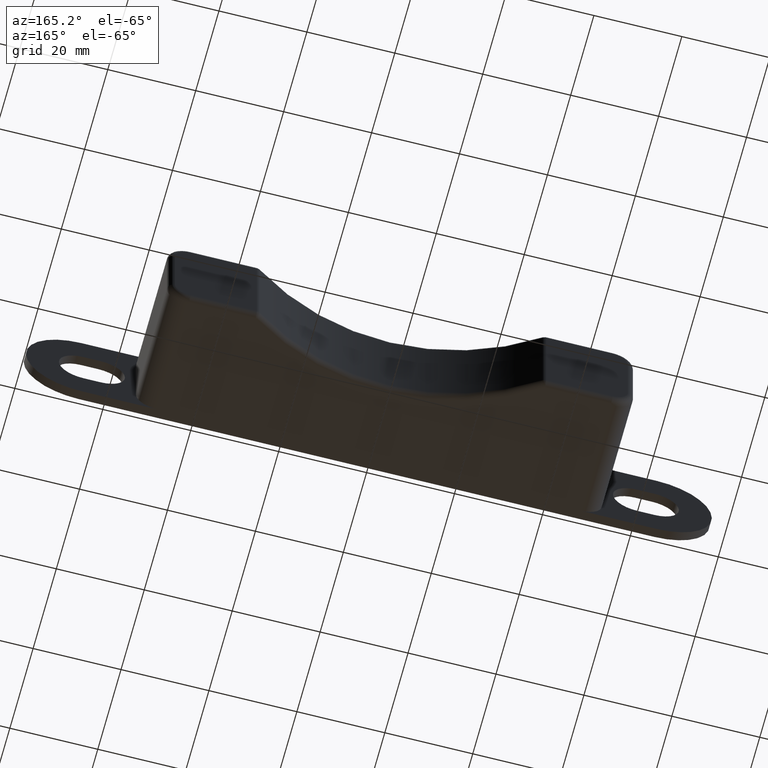
[diagram: clean part render]
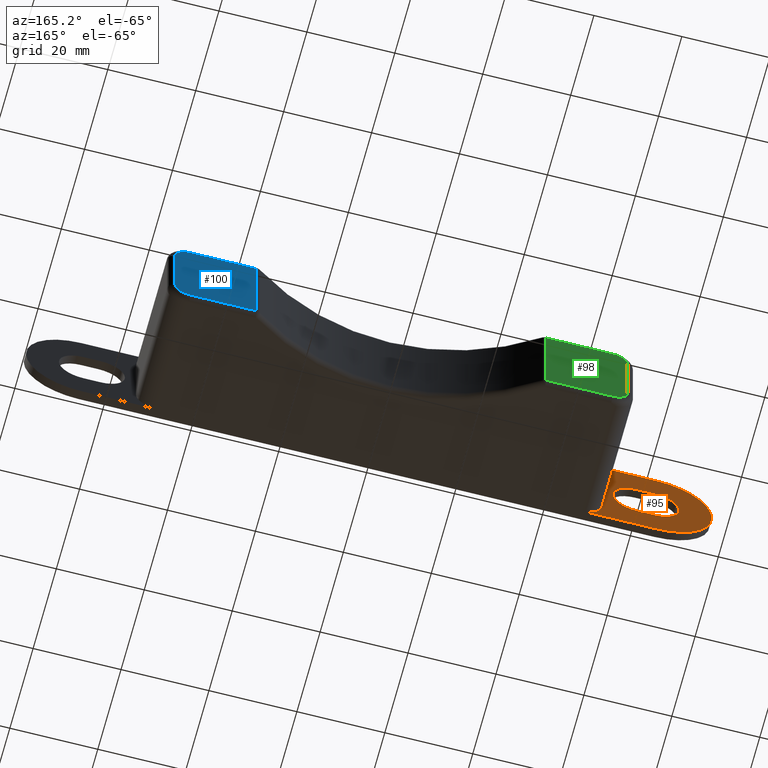
[diagram: same view with three faces highlighted in distinct colors, each labeled with its STEP entity id]
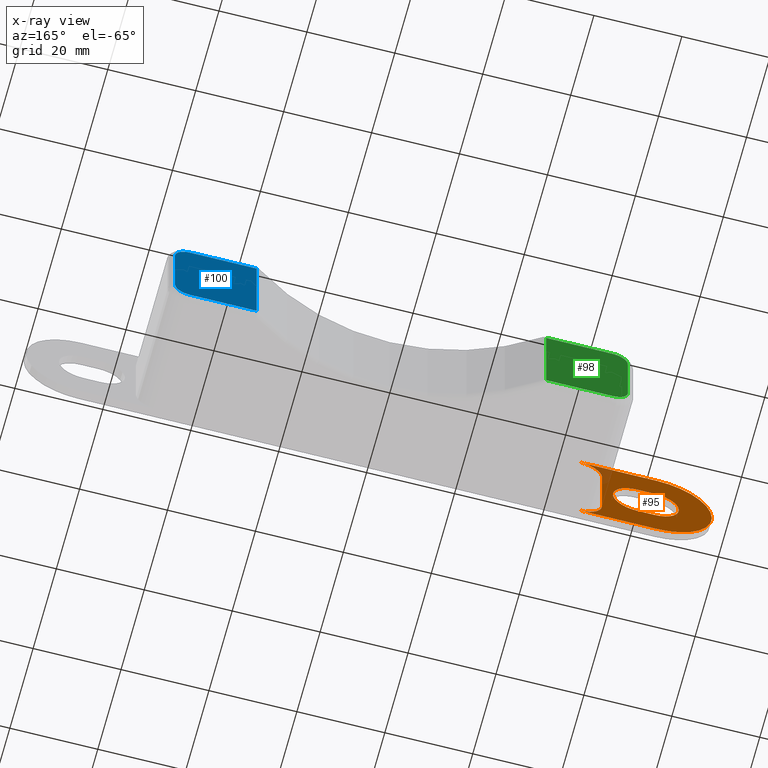
[diagram: x-ray of the same camera — body ghosted, the three highlighted faces saturated]
A machine part, auxiliary view with three faces highlighted in distinct colors.
The next image is the same camera in x-ray (body ghosted, the three faces saturated) — at least one of them is partly hidden behind the body in this view.
Their STEP definitions:

[orange] entity #95 — the highlighted planar face has unit normal (0, 1, 0).
#95 = ADVANCED_FACE( '', ( #812, #813 ), #814, .T. );
#812 = FACE_OUTER_BOUND( '', #2120, .T. );
#813 = FACE_BOUND( '', #2121, .T. );
#814 = PLANE( '', #2122 );
#2120 = EDGE_LOOP( '', ( #3940, #3941, #3942, #3943, #3944, #3945, #3946 ) );
#2121 = EDGE_LOOP( '', ( #3947, #3948, #3949, #3950, #3951, #3952 ) );
#2122 = AXIS2_PLACEMENT_3D( '', #3953, #3954, #3955 );
#3940 = ORIENTED_EDGE( '', *, *, #8768, .T. );
#3941 = ORIENTED_EDGE( '', *, *, #8780, .T. );
#3942 = ORIENTED_EDGE( '', *, *, #8250, .F. );
#3943 = ORIENTED_EDGE( '', *, *, #8781, .T. );
#3944 = ORIENTED_EDGE( '', *, *, #8779, .F. );
#3945 = ORIENTED_EDGE( '', *, *, #8782, .T. );
#3946 = ORIENTED_EDGE( '', *, *, #8776, .T. );
#3947 = ORIENTED_EDGE( '', *, *, #8783, .T. );
#3948 = ORIENTED_EDGE( '', *, *, #8784, .T. );
#3949 = ORIENTED_EDGE( '', *, *, #8785, .T. );
#3950 = ORIENTED_EDGE( '', *, *, #8786, .T. );
#3951 = ORIENTED_EDGE( '', *, *, #8787, .T. );
#3952 = ORIENTED_EDGE( '', *, *, #8788, .T. );
#3953 = CARTESIAN_POINT( '', ( -53.0000000000000, 2.00000000000000, -12.5000000000000 ) );
#3954 = DIRECTION( '', ( 0.000000000000000, 1.00000000000000, 0.000000000000000 ) );
#3955 = DIRECTION( '', ( 1.00000000000000, 0.000000000000000, 0.000000000000000 ) );
#8250 = EDGE_CURVE( '', #9815, #9817, #9818, .T. );
#8768 = EDGE_CURVE( '', #10838, #10836, #10839, .T. );
#8776 = EDGE_CURVE( '', #10841, #10838, #10852, .T. );
#8779 = EDGE_CURVE( '', #10855, #10853, #10857, .T. );
#8780 = EDGE_CURVE( '', #10836, #9817, #10858, .T. );
#8781 = EDGE_CURVE( '', #9815, #10853, #10859, .F. );
#8782 = EDGE_CURVE( '', #10855, #10841, #10860, .F. );
#8783 = EDGE_CURVE( '', #10861, #10862, #10863, .T. );
#8784 = EDGE_CURVE( '', #10862, #10864, #10865, .T. );
#8785 = EDGE_CURVE( '', #10864, #10866, #10867, .T. );
#8786 = EDGE_CURVE( '', #10866, #10868, #10869, .T. );
#8787 = EDGE_CURVE( '', #10868, #10870, #10871, .T. );
#8788 = EDGE_CURVE( '', #10870, #10861, #10872, .T. );
#9815 = VERTEX_POINT( '', #12407 );
#9817 = VERTEX_POINT( '', #12410 );
#9818 = LINE( '', #12411, #12412 );
#10836 = VERTEX_POINT( '', #13916 );
#10838 = VERTEX_POINT( '', #13919 );
#10839 = CIRCLE( '', #13920, 12.5000000000000 );
#10841 = VERTEX_POINT( '', #13923 );
#10852 = LINE( '', #13939, #13940 );
#10853 = VERTEX_POINT( '', #13941 );
#10855 = VERTEX_POINT( '', #13944 );
#10857 = LINE( '', #13947, #13948 );
#10858 = CIRCLE( '', #13949, 12.5000000000000 );
#10859 = CIRCLE( '', #13950, 5.00000000000000 );
#10860 = CIRCLE( '', #13951, 5.00000000000000 );
#10861 = VERTEX_POINT( '', #13952 );
#10862 = VERTEX_POINT( '', #13953 );
#10863 = CIRCLE( '', #13954, 5.50000000000000 );
#10864 = VERTEX_POINT( '', #13955 );
#10865 = CIRCLE( '', #13956, 5.50000000000000 );
#10866 = VERTEX_POINT( '', #13957 );
#10867 = LINE( '', #13958, #13959 );
#10868 = VERTEX_POINT( '', #13960 );
#10869 = CIRCLE( '', #13961, 5.50000000000000 );
#10870 = VERTEX_POINT( '', #13962 );
#10871 = CIRCLE( '', #13963, 5.50000000000000 );
#10872 = LINE( '', #13964, #13965 );
#12407 = CARTESIAN_POINT( '', ( -48.0000000000000, 2.00000000000000, 12.5000000000000 ) );
#12410 = CARTESIAN_POINT( '', ( -65.5000000000000, 2.00000000000000, 12.5000000000000 ) );
#12411 = CARTESIAN_POINT( '', ( -53.0000000000000, 2.00000000000000, 12.5000000000000 ) );
#12412 = VECTOR( '', #16262, 1000.00000000000 );
#13916 = CARTESIAN_POINT( '', ( -78.0000000000000, 2.00000000000000, 0.000000000000000 ) );
#13919 = CARTESIAN_POINT( '', ( -65.5000000000000, 2.00000000000000, -12.5000000000000 ) );
#13920 = AXIS2_PLACEMENT_3D( '', #16840, #16841, #16842 );
#13923 = CARTESIAN_POINT( '', ( -48.0000000000000, 2.00000000000000, -12.5000000000000 ) );
#13939 = CARTESIAN_POINT( '', ( -53.0000000000000, 2.00000000000000, -12.5000000000000 ) );
#13940 = VECTOR( '', #16852, 1000.00000000000 );
#13941 = CARTESIAN_POINT( '', ( -53.0000000000000, 1.99999999999999, 7.49999999999999 ) );
#13944 = CARTESIAN_POINT( '', ( -53.0000000000000, 1.99999999999999, -7.50000000000000 ) );
#13947 = CARTESIAN_POINT( '', ( -53.0000000000000, 1.99999999999999, -12.5000000000000 ) );
#13948 = VECTOR( '', #16855, 1000.00000000000 );
#13949 = AXIS2_PLACEMENT_3D( '', #16856, #16857, #16858 );
#13950 = AXIS2_PLACEMENT_3D( '', #16859, #16860, #16861 );
#13951 = AXIS2_PLACEMENT_3D( '', #16862, #16863, #16864 );
#13952 = CARTESIAN_POINT( '', ( -65.0000000000006, 2.00000199999403, 5.50000000000024 ) );
#13953 = CARTESIAN_POINT( '', ( -70.5000000000006, 2.00000199999403, 2.37657116208823E-013 ) );
#13954 = AXIS2_PLACEMENT_3D( '', #16865, #16866, #16867 );
#13955 = CARTESIAN_POINT( '', ( -65.0000000000006, 2.00000199999403, -5.50000000000022 ) );
#13956 = AXIS2_PLACEMENT_3D( '', #16868, #16869, #16870 );
#13957 = CARTESIAN_POINT( '', ( -61.0000000000004, 2.00000199999403, -5.50000000000022 ) );
#13958 = CARTESIAN_POINT( '', ( -65.0000000000006, 2.00000199999403, -5.50000000000022 ) );
#13959 = VECTOR( '', #16871, 1000.00000000000 );
#13960 = CARTESIAN_POINT( '', ( -55.5000000000004, 2.00000199999403, -2.15973072759112E-013 ) );
#13961 = AXIS2_PLACEMENT_3D( '', #16872, #16873, #16874 );
#13962 = CARTESIAN_POINT( '', ( -61.0000000000004, 2.00000199999403, 5.50000000000024 ) );
#13963 = AXIS2_PLACEMENT_3D( '', #16875, #16876, #16877 );
#13964 = CARTESIAN_POINT( '', ( -61.0000000000004, 2.00000199999403, 5.50000000000024 ) );
#13965 = VECTOR( '', #16878, 1000.00000000000 );
#16262 = DIRECTION( '', ( -1.00000000000000, 0.000000000000000, 0.000000000000000 ) );
#16840 = CARTESIAN_POINT( '', ( -65.5000000000000, 2.00000000000000, 3.46944695195361E-015 ) );
#16841 = DIRECTION( '', ( 0.000000000000000, 1.00000000000000, 0.000000000000000 ) );
#16842 = DIRECTION( '', ( 0.000000000000000, 0.000000000000000, 1.00000000000000 ) );
#16852 = DIRECTION( '', ( -1.00000000000000, 0.000000000000000, 0.000000000000000 ) );
#16855 = DIRECTION( '', ( 0.000000000000000, 0.000000000000000, 1.00000000000000 ) );
#16856 = CARTESIAN_POINT( '', ( -65.5000000000000, 2.00000000000000, 1.73472347597681E-015 ) );
#16857 = DIRECTION( '', ( 0.000000000000000, 1.00000000000000, 0.000000000000000 ) );
#16858 = DIRECTION( '', ( 0.000000000000000, 0.000000000000000, 1.00000000000000 ) );
#16859 = CARTESIAN_POINT( '', ( -48.0000000000000, 2.00000000000000, 7.50000000000000 ) );
#16860 = DIRECTION( '', ( 0.000000000000000, 1.00000000000000, 0.000000000000000 ) );
#16861 = DIRECTION( '', ( 0.000000000000000, 0.000000000000000, 1.00000000000000 ) );
#16862 = CARTESIAN_POINT( '', ( -48.0000000000000, 2.00000000000000, -7.50000000000000 ) );
#16863 = DIRECTION( '', ( 0.000000000000000, 1.00000000000000, 0.000000000000000 ) );
#16864 = DIRECTION( '', ( 0.000000000000000, 0.000000000000000, 1.00000000000000 ) );
#16865 = CARTESIAN_POINT( '', ( -65.0000000000006, 2.00000199999403, 2.36789754470834E-013 ) );
#16866 = DIRECTION( '', ( 0.000000000000000, -1.00000000000000, 0.000000000000000 ) );
#16867 = DIRECTION( '', ( 1.15648231731786E-016, 0.000000000000000, 1.00000000000000 ) );
#16868 = CARTESIAN_POINT( '', ( -65.0000000000006, 2.00000199999403, -2.15973072759112E-013 ) );
#16869 = DIRECTION( '', ( 0.000000000000000, -1.00000000000000, 0.000000000000000 ) );
#16870 = DIRECTION( '', ( -1.00000000000000, 0.000000000000000, 1.15648231731786E-016 ) );
#16871 = DIRECTION( '', ( 1.00000000000000, 0.000000000000000, -1.15648231731786E-016 ) );
#16872 = CARTESIAN_POINT( '', ( -61.0000000000004, 2.00000199999403, -2.15973072759112E-013 ) );
#16873 = DIRECTION( '', ( 0.000000000000000, -1.00000000000000, 0.000000000000000 ) );
#16874 = DIRECTION( '', ( -1.15648231731786E-016, 0.000000000000000, -1.00000000000000 ) );
#16875 = CARTESIAN_POINT( '', ( -61.0000000000004, 2.00000199999403, 2.36789754470834E-013 ) );
#16876 = DIRECTION( '', ( 0.000000000000000, -1.00000000000000, 0.000000000000000 ) );
#16877 = DIRECTION( '', ( 1.00000000000000, 0.000000000000000, 4.20539024479241E-017 ) );
#16878 = DIRECTION( '', ( -1.00000000000000, 0.000000000000000, 1.15648231731786E-016 ) );

[blue] entity #100 — the highlighted planar face has unit normal (0, 1, 0).
#100 = ADVANCED_FACE( '', ( #824 ), #825, .T. );
#824 = FACE_OUTER_BOUND( '', #2132, .T. );
#825 = PLANE( '', #2133 );
#2132 = EDGE_LOOP( '', ( #3995, #3996, #3997, #3998, #3999, #4000 ) );
#2133 = AXIS2_PLACEMENT_3D( '', #4001, #4002, #4003 );
#3995 = ORIENTED_EDGE( '', *, *, #8809, .T. );
#3996 = ORIENTED_EDGE( '', *, *, #8810, .T. );
#3997 = ORIENTED_EDGE( '', *, *, #8811, .T. );
#3998 = ORIENTED_EDGE( '', *, *, #8812, .T. );
#3999 = ORIENTED_EDGE( '', *, *, #8813, .T. );
#4000 = ORIENTED_EDGE( '', *, *, #8814, .T. );
#4001 = CARTESIAN_POINT( '', ( 53.0000000000000, 30.0000000000000, -12.5000000000000 ) );
#4002 = DIRECTION( '', ( 0.000000000000000, 1.00000000000000, 0.000000000000000 ) );
#4003 = DIRECTION( '', ( 1.00000000000000, 0.000000000000000, 0.000000000000000 ) );
#8809 = EDGE_CURVE( '', #10908, #10909, #10910, .T. );
#8810 = EDGE_CURVE( '', #10909, #10911, #10912, .T. );
#8811 = EDGE_CURVE( '', #10911, #10913, #10914, .F. );
#8812 = EDGE_CURVE( '', #10913, #10915, #10916, .T. );
#8813 = EDGE_CURVE( '', #10915, #10917, #10918, .F. );
#8814 = EDGE_CURVE( '', #10917, #10908, #10919, .T. );
#10908 = VERTEX_POINT( '', #14011 );
#10909 = VERTEX_POINT( '', #14012 );
#10910 = LINE( '', #14013, #14014 );
#10911 = VERTEX_POINT( '', #14015 );
#10912 = LINE( '', #14016, #14017 );
#10913 = VERTEX_POINT( '', #14018 );
#10914 = LINE( '', #14019, #14020 );
#10915 = VERTEX_POINT( '', #14021 );
#10916 = CIRCLE( '', #14022, 3.50000000000000 );
#10917 = VERTEX_POINT( '', #14023 );
#10918 = LINE( '', #14024, #14025 );
#10919 = CIRCLE( '', #14026, 3.50000000000000 );
#14011 = CARTESIAN_POINT( '', ( 48.0000000000000, 30.0000000000000, -11.0000000000000 ) );
#14012 = CARTESIAN_POINT( '', ( 32.9089653438087, 30.0000000000000, -11.0000000000000 ) );
#14013 = CARTESIAN_POINT( '', ( 53.0000000000000, 30.0000000000000, -11.0000000000000 ) );
#14014 = VECTOR( '', #16919, 1000.00000000000 );
#14015 = CARTESIAN_POINT( '', ( 32.9089653438087, 30.0000000000000, 11.0000000000000 ) );
#14016 = CARTESIAN_POINT( '', ( 32.9089653438087, 30.0000000000000, -12.5000000000000 ) );
#14017 = VECTOR( '', #16920, 1000.00000000000 );
#14018 = CARTESIAN_POINT( '', ( 48.0000000000000, 30.0000000000000, 11.0000000000000 ) );
#14019 = CARTESIAN_POINT( '', ( 48.0000000000000, 30.0000000000000, 11.0000000000000 ) );
#14020 = VECTOR( '', #16921, 1000.00000000000 );
#14021 = CARTESIAN_POINT( '', ( 51.5000000000000, 30.0000000000000, 7.50000000000000 ) );
#14022 = AXIS2_PLACEMENT_3D( '', #16922, #16923, #16924 );
#14023 = CARTESIAN_POINT( '', ( 51.5000000000000, 30.0000000000000, -7.50000000000000 ) );
#14024 = CARTESIAN_POINT( '', ( 51.5000000000000, 30.0000000000000, -12.5000000000000 ) );
#14025 = VECTOR( '', #16925, 1000.00000000000 );
#14026 = AXIS2_PLACEMENT_3D( '', #16926, #16927, #16928 );
#16919 = DIRECTION( '', ( -1.00000000000000, 0.000000000000000, 0.000000000000000 ) );
#16920 = DIRECTION( '', ( 0.000000000000000, 0.000000000000000, 1.00000000000000 ) );
#16921 = DIRECTION( '', ( -1.00000000000000, 0.000000000000000, 0.000000000000000 ) );
#16922 = CARTESIAN_POINT( '', ( 48.0000000000000, 30.0000000000000, 7.50000000000000 ) );
#16923 = DIRECTION( '', ( 0.000000000000000, 1.00000000000000, 0.000000000000000 ) );
#16924 = DIRECTION( '', ( 0.000000000000000, 0.000000000000000, 1.00000000000000 ) );
#16925 = DIRECTION( '', ( 0.000000000000000, 0.000000000000000, 1.00000000000000 ) );
#16926 = CARTESIAN_POINT( '', ( 48.0000000000000, 30.0000000000000, -7.50000000000000 ) );
#16927 = DIRECTION( '', ( 0.000000000000000, 1.00000000000000, 0.000000000000000 ) );
#16928 = DIRECTION( '', ( 0.000000000000000, 0.000000000000000, 1.00000000000000 ) );

[green] entity #98 — the highlighted planar face has unit normal (0, 1, 0).
#98 = ADVANCED_FACE( '', ( #820 ), #821, .T. );
#820 = FACE_OUTER_BOUND( '', #2128, .T. );
#821 = PLANE( '', #2129 );
#2128 = EDGE_LOOP( '', ( #3979, #3980, #3981, #3982, #3983, #3984 ) );
#2129 = AXIS2_PLACEMENT_3D( '', #3985, #3986, #3987 );
#3979 = ORIENTED_EDGE( '', *, *, #8756, .T. );
#3980 = ORIENTED_EDGE( '', *, *, #8753, .T. );
#3981 = ORIENTED_EDGE( '', *, *, #8748, .T. );
#3982 = ORIENTED_EDGE( '', *, *, #8758, .T. );
#3983 = ORIENTED_EDGE( '', *, *, #8803, .T. );
#3984 = ORIENTED_EDGE( '', *, *, #8804, .T. );
#3985 = CARTESIAN_POINT( '', ( -32.4499614791759, 30.0000000000000, -12.5000000000000 ) );
#3986 = DIRECTION( '', ( 0.000000000000000, 1.00000000000000, 0.000000000000000 ) );
#3987 = DIRECTION( '', ( 1.00000000000000, 0.000000000000000, 0.000000000000000 ) );
#8748 = EDGE_CURVE( '', #10804, #10802, #10805, .T. );
#8753 = EDGE_CURVE( '', #10809, #10804, #10813, .T. );
#8756 = EDGE_CURVE( '', #10814, #10809, #10818, .T. );
#8758 = EDGE_CURVE( '', #10802, #10819, #10821, .T. );
#8803 = EDGE_CURVE( '', #10819, #10898, #10899, .F. );
#8804 = EDGE_CURVE( '', #10898, #10814, #10900, .F. );
#10802 = VERTEX_POINT( '', #13876 );
#10804 = VERTEX_POINT( '', #13878 );
#10805 = LINE( '', #13879, #13880 );
#10809 = VERTEX_POINT( '', #13885 );
#10813 = CIRCLE( '', #13889, 3.50000000000000 );
#10814 = VERTEX_POINT( '', #13890 );
#10818 = LINE( '', #13895, #13896 );
#10819 = VERTEX_POINT( '', #13897 );
#10821 = CIRCLE( '', #13899, 3.50000000000000 );
#10898 = VERTEX_POINT( '', #13997 );
#10899 = LINE( '', #13998, #13999 );
#10900 = LINE( '', #14000, #14001 );
#13876 = CARTESIAN_POINT( '', ( -51.5000000000000, 30.0000000000000, 7.50000000000000 ) );
#13878 = CARTESIAN_POINT( '', ( -51.5000000000000, 30.0000000000000, -7.50000000000000 ) );
#13879 = CARTESIAN_POINT( '', ( -51.5000000000000, 30.0000000000000, -12.5000000000000 ) );
#13880 = VECTOR( '', #16794, 1000.00000000000 );
#13885 = CARTESIAN_POINT( '', ( -48.0000000000000, 30.0000000000000, -11.0000000000000 ) );
#13889 = AXIS2_PLACEMENT_3D( '', #16805, #16806, #16807 );
#13890 = CARTESIAN_POINT( '', ( -32.9089653438087, 30.0000000000000, -11.0000000000000 ) );
#13895 = CARTESIAN_POINT( '', ( -32.4499614791759, 30.0000000000000, -11.0000000000000 ) );
#13896 = VECTOR( '', #16812, 1000.00000000000 );
#13897 = CARTESIAN_POINT( '', ( -48.0000000000000, 30.0000000000000, 11.0000000000000 ) );
#13899 = AXIS2_PLACEMENT_3D( '', #16816, #16817, #16818 );
#13997 = CARTESIAN_POINT( '', ( -32.9089653438087, 30.0000000000000, 11.0000000000000 ) );
#13998 = CARTESIAN_POINT( '', ( -32.4499614791759, 30.0000000000000, 11.0000000000000 ) );
#13999 = VECTOR( '', #16909, 1000.00000000000 );
#14000 = CARTESIAN_POINT( '', ( -32.9089653438087, 30.0000000000000, -12.5000000000000 ) );
#14001 = VECTOR( '', #16910, 1000.00000000000 );
#16794 = DIRECTION( '', ( 0.000000000000000, 0.000000000000000, 1.00000000000000 ) );
#16805 = CARTESIAN_POINT( '', ( -48.0000000000000, 30.0000000000000, -7.50000000000000 ) );
#16806 = DIRECTION( '', ( 0.000000000000000, 1.00000000000000, 0.000000000000000 ) );
#16807 = DIRECTION( '', ( 0.000000000000000, 0.000000000000000, 1.00000000000000 ) );
#16812 = DIRECTION( '', ( -1.00000000000000, 0.000000000000000, 0.000000000000000 ) );
#16816 = CARTESIAN_POINT( '', ( -48.0000000000000, 30.0000000000000, 7.50000000000000 ) );
#16817 = DIRECTION( '', ( 0.000000000000000, 1.00000000000000, 0.000000000000000 ) );
#16818 = DIRECTION( '', ( 0.000000000000000, 0.000000000000000, 1.00000000000000 ) );
#16909 = DIRECTION( '', ( -1.00000000000000, 0.000000000000000, 0.000000000000000 ) );
#16910 = DIRECTION( '', ( 0.000000000000000, 0.000000000000000, 1.00000000000000 ) );